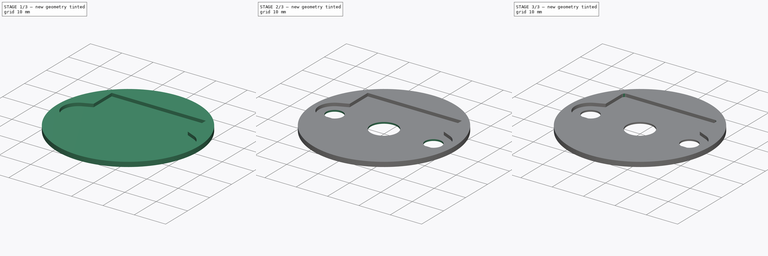
[diagram: build sequence overview — one tinted view per stage of 3, left to right]
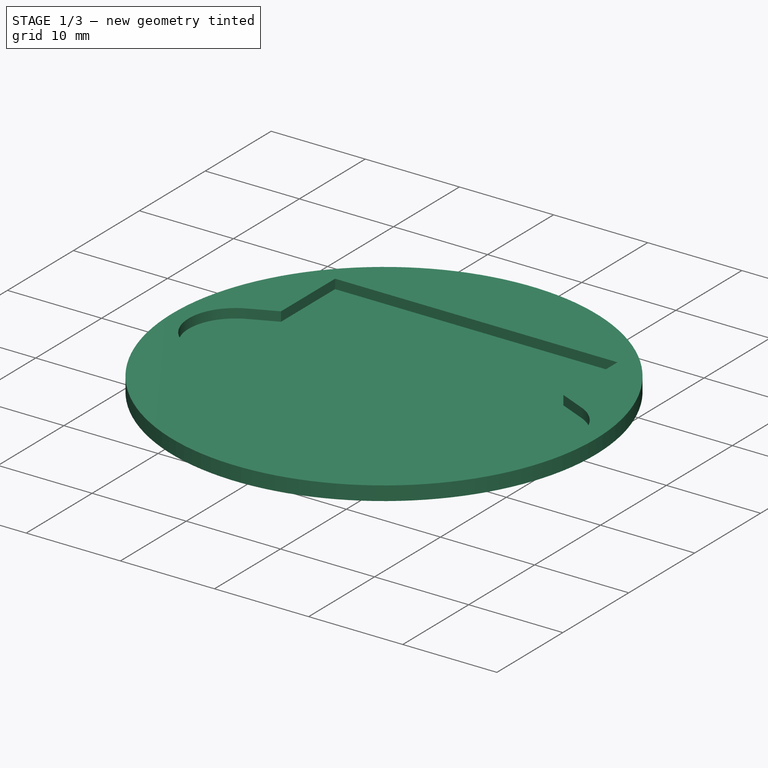
[diagram: stage 1 of 3 — iso view after this stage's code; geometry added in this stage tinted green]
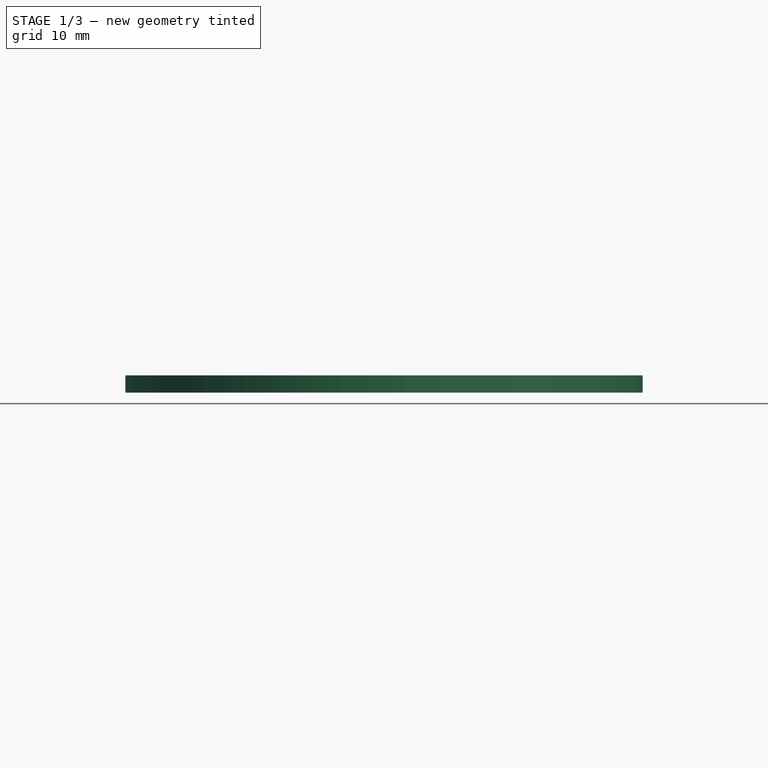
[diagram: stage 1 of 3 — front view after this stage's code; geometry added in this stage tinted green]
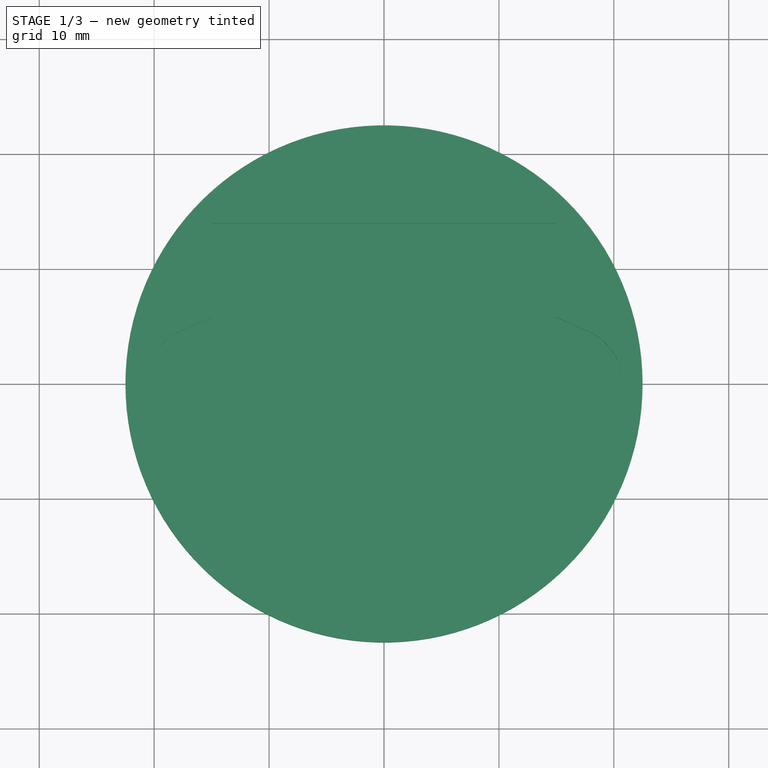
[diagram: stage 1 of 3 — top view after this stage's code; geometry added in this stage tinted green]
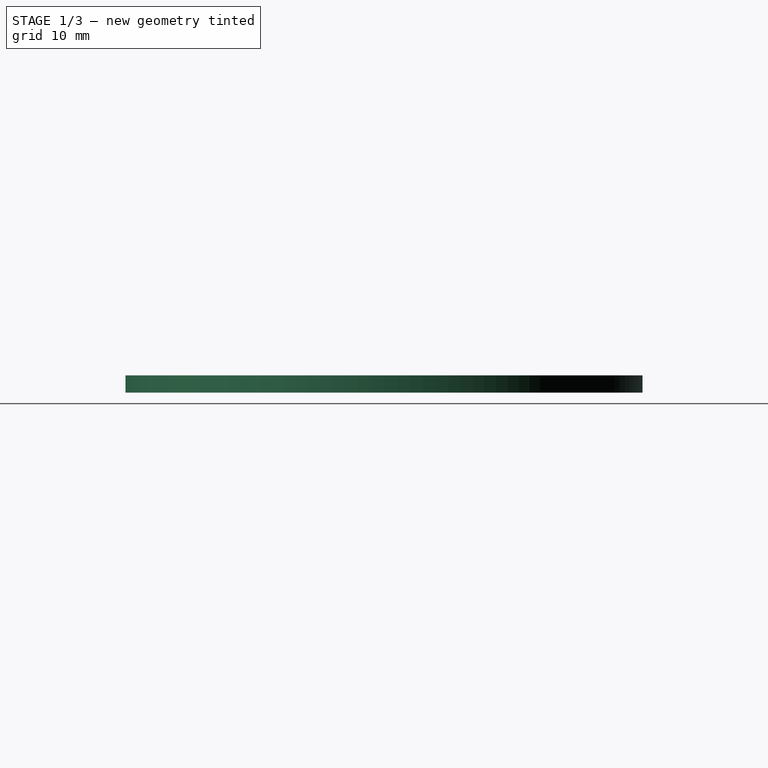
[diagram: stage 1 of 3 — right view after this stage's code; geometry added in this stage tinted green]
FCSTD DOCUMENT  (FreeCAD 0.19R24276 (Git))
Label: Gear_no_screw_V1
License: All rights reserved
LicenseURL: http://en.wikipedia.org/wiki/All_rights_reserved
objects: Sketcher::SketchObject×3, PartDesign::Pad×2, PartDesign::Fillet×2, PartDesign::Pocket×1, PartDesign::Body×1
note: 14 computed .brp shape members not serialized (recipe doc carries the construction recipe); baked Part::Feature solids carry a one-line shape summary decoded from their .brp

FEATURE [Sketcher::SketchObject] Sketch  label="Sketch_d45_kontur"
  FullyConstrained = false
  MapMode = 5
  Support = -> [XY_Plane]
  sketch-geometry (26):
    g0: Circle CenterX=0 CenterY=0 CenterZ=0 NormalX=0 NormalY=0 NormalZ=1 AngleXU=0 Radius=4.25
    g1: Circle CenterX=15.75 CenterY=0 CenterZ=0 NormalX=0 NormalY=0 NormalZ=1 AngleXU=0 Radius=2.65
    g2: Circle CenterX=-15.75 CenterY=0 CenterZ=0 NormalX=0 NormalY=0 NormalZ=1 AngleXU=0 Radius=2.65
    g3: ArcOfCircle CenterX=15.75 CenterY=0 CenterZ=0 NormalX=0 NormalY=0 NormalZ=1 AngleXU=0 Radius=5 StartAngle=5.04775 EndAngle=7.43868
    g4: ArcOfCircle CenterX=-15.75 CenterY=0 CenterZ=0 NormalX=0 NormalY=0 NormalZ=1 AngleXU=0 Radius=5 StartAngle=1.9861 EndAngle=4.37703
    g5: LineSegment StartX=-10 StartY=14 StartZ=0 EndX=10 EndY=14 EndZ=0
    g6: LineSegment StartX=10 StartY=14 StartZ=0 EndX=10 EndY=8 EndZ=0
    g7: LineSegment StartX=-10 StartY=14 StartZ=0 EndX=-10 EndY=8 EndZ=0
    g8: LineSegment StartX=0 StartY=0 StartZ=0 EndX=0 EndY=14 EndZ=0
    g9: LineSegment StartX=-17.7673 StartY=4.57497 StartZ=0 EndX=-10 EndY=8 EndZ=0
    g10: LineSegment StartX=-15.75 StartY=0 StartZ=0 EndX=-17.7673 EndY=4.57497 EndZ=0
    g11: LineSegment StartX=17.7673 StartY=4.57497 StartZ=0 EndX=10 EndY=8 EndZ=0
    g12: LineSegment StartX=17.7673 StartY=4.57497 StartZ=0 EndX=15.75 EndY=0 EndZ=0
    g13: LineSegment StartX=0 StartY=0 StartZ=0 EndX=35.766 EndY=0 EndZ=0
    g14: LineSegment StartX=-2.25 StartY=-10 StartZ=0 EndX=2.25 EndY=-10 EndZ=0
    g15: LineSegment StartX=15.75 StartY=0 StartZ=0 EndX=17.3955 EndY=-4.72147 EndZ=0
    g16: LineSegment StartX=-15.75 StartY=0 StartZ=0 EndX=-17.3955 EndY=-4.72147 EndZ=0
    g17: LineSegment StartX=17.3955 StartY=-4.72147 StartZ=0 EndX=2.25 EndY=-10 EndZ=0
    g18: LineSegment StartX=-17.3955 StartY=-4.72147 StartZ=0 EndX=-2.25 EndY=-10 EndZ=0
    g19: LineSegment StartX=0 StartY=0 StartZ=0 EndX=0 EndY=-10 EndZ=0
    g20: LineSegment StartX=-15 StartY=14 StartZ=0 EndX=-15 EndY=5.79524 EndZ=0
    g21: LineSegment StartX=15 StartY=14 StartZ=0 EndX=15 EndY=5.79524 EndZ=0
    g22: Circle CenterX=0 CenterY=0 CenterZ=0 NormalX=0 NormalY=0 NormalZ=1 AngleXU=0 Radius=22.5
    g23: LineSegment StartX=-15 StartY=14 StartZ=0 EndX=15 EndY=14 EndZ=0
    g24: LineSegment StartX=-17.7673 StartY=4.57497 StartZ=0 EndX=-15 EndY=5.79524 EndZ=0
    g25: LineSegment StartX=15 StartY=5.79524 StartZ=0 EndX=17.7673 EndY=4.57497 EndZ=0
  constraints (64):
    c: Coincident(g0,g-1)
    c: PointOnObject(g1,g-1)
    c: DistanceX(g2,g1) = 31.5
    c: Symmetric(g2,g1,g-1)
    c: Diameter(g0) = 8.5
    c: Diameter(g1) = 5.3
    c: Equal(g1,g2)
    c: Coincident(g3,g1)
    c: Coincident(g4,g2)
    c: Diameter(g3) = 10
    c: Equal(g4,g3)
    c: Horizontal(g5)
    c: DistanceY(g2,g5) = 14
    c: Coincident(g6,g5)
    c: Vertical(g6)
    c: Coincident(g7,g5)
    c: Vertical(g7)
    c: DistanceY(g7,g5) = 6
    c: Equal(g7,g6)
    c: Coincident(g8,g-1)
    c: PointOnObject(g8,g-2)
    c: Symmetric(g5,g5,g8)
    c: DistanceX(g5,g5) = 20
    c: Coincident(g9,g7)
    c: Coincident(g10,g2)
    c: Coincident(g10,g9)
    c: Perpendicular(g10,g9)
    c: Coincident(g11,g6)
    c: Coincident(g12,g11)
    c: Coincident(g12,g1)
    c: Coincident(g13,g-1)
    c: PointOnObject(g13,g-1)
    c: Horizontal(g14)
    c: Coincident(g15,g1)
    c: Coincident(g16,g2)
    c: Coincident(g17,g15)
    c: Coincident(g18,g16)
    c: Perpendicular(g18,g16)
    c: Perpendicular(g17,g15)
    c: Coincident(g18,g14)
    c: Coincident(g14,g17)
    c: DistanceY(g14,g-1) = 10
    c: DistanceX(g14,g14) = 4.5
    c: Coincident(g19,g-1)
    c: PointOnObject(g19,g-2)
    c: Symmetric(g14,g14,g19)
    c: Vertical(g20)
    c: Vertical(g21)
    c: Symmetric(g20,g21,g8)
    c: Horizontal(g20,g8)
    c: DistanceX(g20,g21) = 30
    c: PointOnObject(g20,g9)
    c: PointOnObject(g21,g11)
    c: Coincident(g22,g-1)
    c: Diameter(g22) = 45
    c: Coincident(g3,g15)
    c: Tangent(g3,g11) = -1.5708
    c: Coincident(g4,g9)
    c: Coincident(g4,g16)
    c: Coincident(g23,g20)
    c: Coincident(g24,g4)
    c: Coincident(g24,g20)
    c: Coincident(g25,g21)
    c: Coincident(g25,g3)
FEATURE [PartDesign::Pad] Pad  label="Pad_h1"
  Direction = (1,1,1)
  Length = 1
  Length2 = 100
  Profile = -> Sketch
  Type = 0
FEATURE [Sketcher::SketchObject] Sketch001  label="Sketch001_d45"
  FullyConstrained = true
  MapMode = 5
  Placement = pos=(0,0,0) rot=(1,0,0;3.14159rad)
  Support = -> [Pad]
  sketch-geometry (1):
    g0: Circle CenterX=0 CenterY=0 CenterZ=0 NormalX=0 NormalY=0 NormalZ=1 AngleXU=0 Radius=22.5
  constraints (2):
    c: Coincident(g0,g-1)
    c: Diameter(g0) = 45
FEATURE [PartDesign::Pad] Pad001  label="Pad001_h_0.5"
  BaseFeature = -> Pad
  Direction = (1,1,1)
  Length = 0.5
  Length2 = 100
  Profile = -> Sketch001
  Type = 0
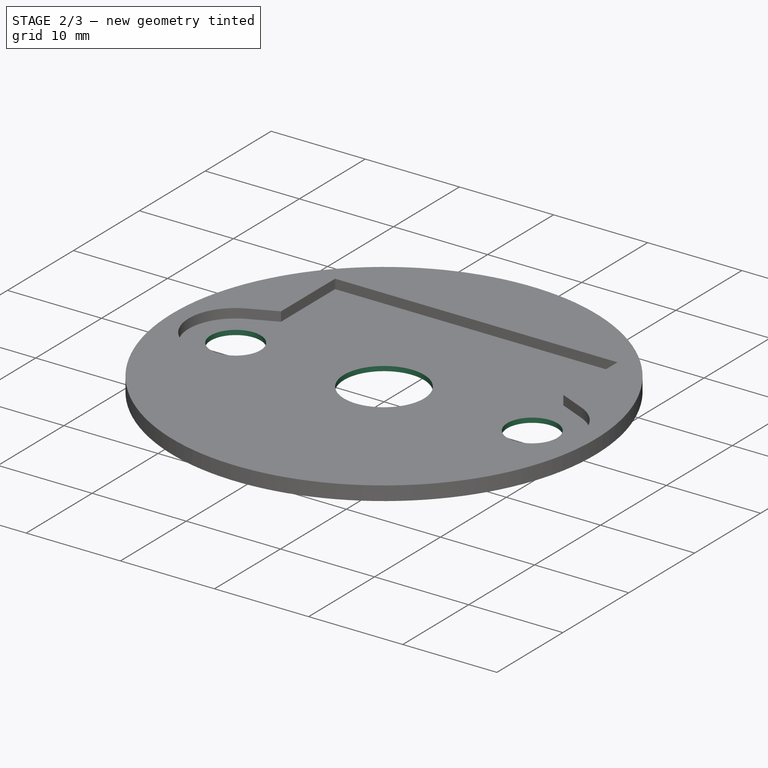
[diagram: stage 2 of 3 — iso view after this stage's code; geometry added in this stage tinted green]
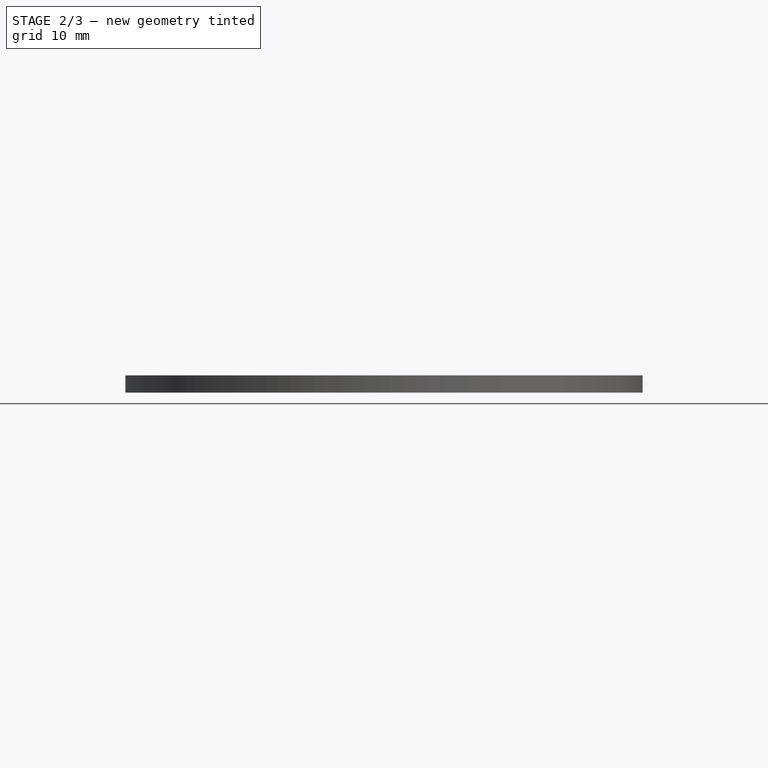
[diagram: stage 2 of 3 — front view after this stage's code; geometry added in this stage tinted green]
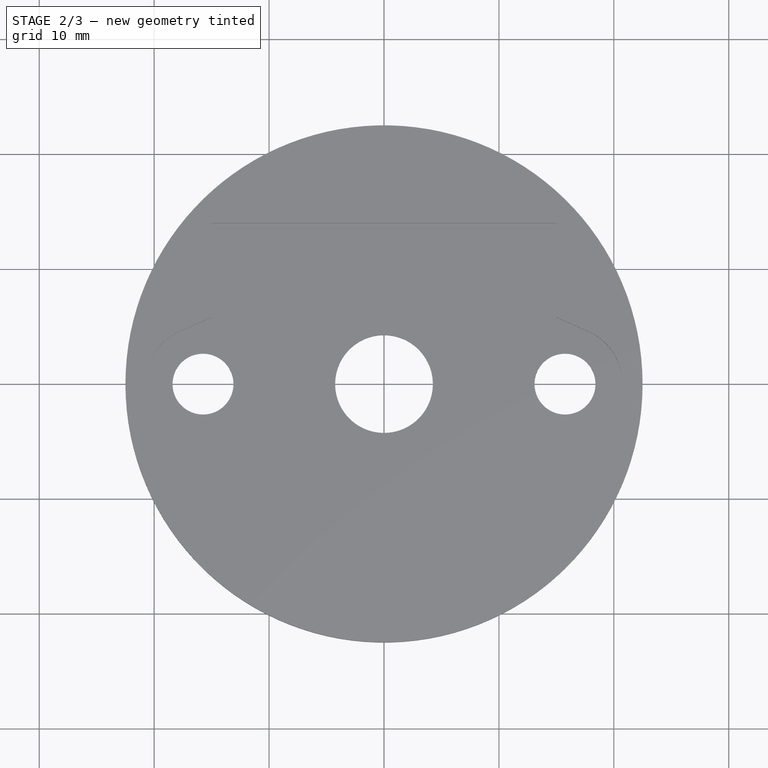
[diagram: stage 2 of 3 — top view after this stage's code; geometry added in this stage tinted green]
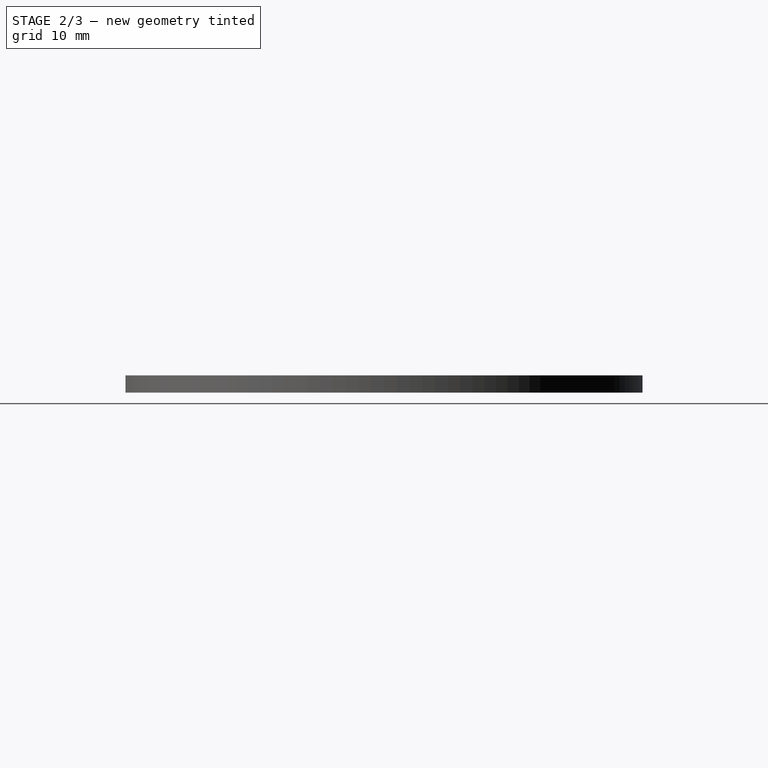
[diagram: stage 2 of 3 — right view after this stage's code; geometry added in this stage tinted green]
FEATURE [Sketcher::SketchObject] Sketch002
  FullyConstrained = true
  MapMode = 5
  Placement = pos=(0,0,-0.5) rot=(1,0,0;3.14159rad)
  Support = -> [Pad001]
  sketch-geometry (3):
    g0: Circle CenterX=0 CenterY=0 CenterZ=0 NormalX=0 NormalY=0 NormalZ=1 AngleXU=0 Radius=4.25
    g1: Circle CenterX=-15.75 CenterY=0 CenterZ=0 NormalX=0 NormalY=0 NormalZ=1 AngleXU=0 Radius=2.65
    g2: Circle CenterX=15.75 CenterY=0 CenterZ=0 NormalX=0 NormalY=0 NormalZ=1 AngleXU=0 Radius=2.65
  constraints (7):
    c: Coincident(g0,g-1)
    c: PointOnObject(g2,g-1)
    c: Diameter(g0) = 8.5
    c: Equal(g1,g2)
    c: Diameter(g1) = 5.3
    c: Symmetric(g1,g2,g0)
    c: DistanceX(g1,g2) = 31.5
FEATURE [PartDesign::Pocket] Pocket
  BaseFeature = -> Pad001
  Length = 5
  Length2 = 100
  Profile = -> Sketch002
  Type = 1
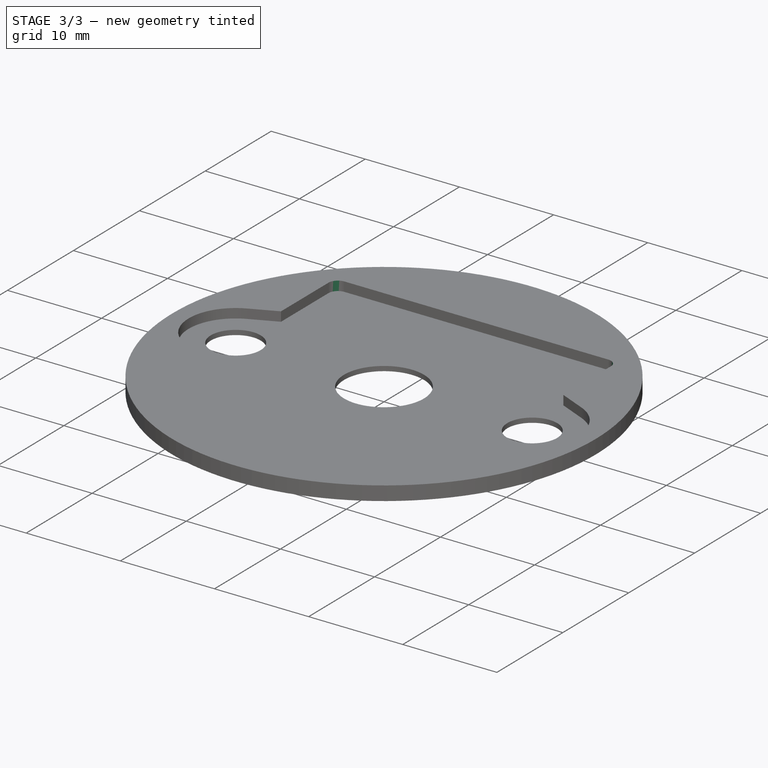
[diagram: stage 3 of 3 — iso view after this stage's code; geometry added in this stage tinted green]
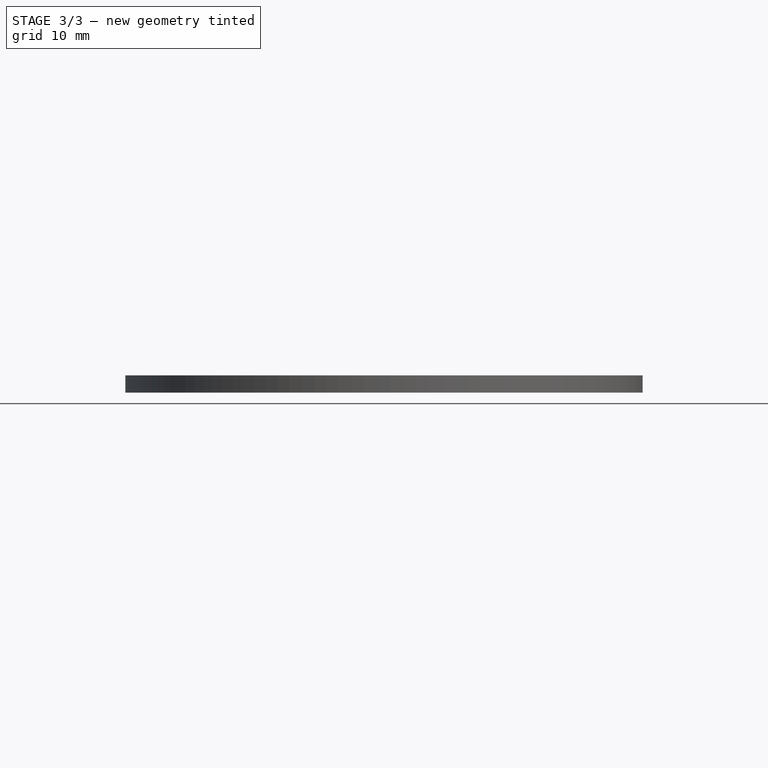
[diagram: stage 3 of 3 — front view after this stage's code; geometry added in this stage tinted green]
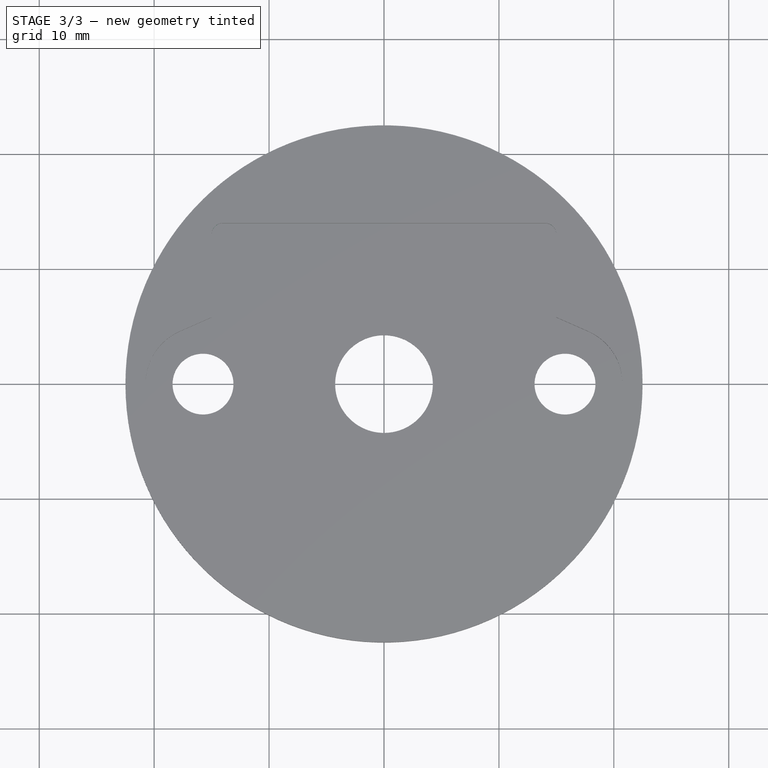
[diagram: stage 3 of 3 — top view after this stage's code; geometry added in this stage tinted green]
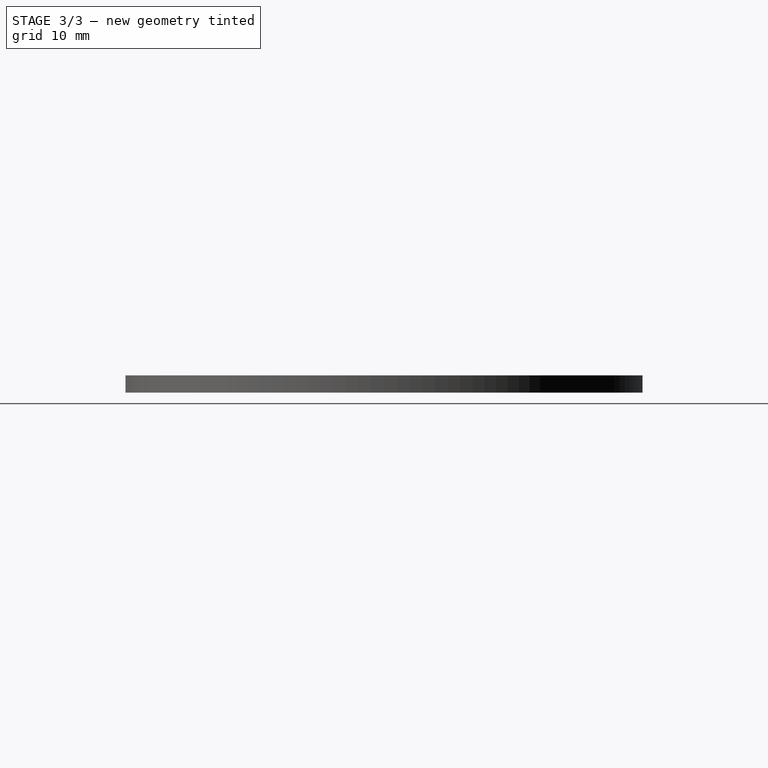
[diagram: stage 3 of 3 — right view after this stage's code; geometry added in this stage tinted green]
FEATURE [PartDesign::Fillet] Fillet
  Base = -> Pocket [Edge24,Edge22]
  BaseFeature = -> Pocket
  Radius = 1
  SupportTransform = false
FEATURE [PartDesign::Fillet] Fillet001
  Base = -> Fillet [Edge27,Edge31]
  BaseFeature = -> Fillet
  Radius = 1
  SupportTransform = false
FEATURE [PartDesign::Body] Body
  Group = -> [Sketch,Pad,Sketch001,Pad001,Sketch002,Pocket,Fillet,Fillet001]
  Origin = -> Origin
  Tip = -> Fillet001
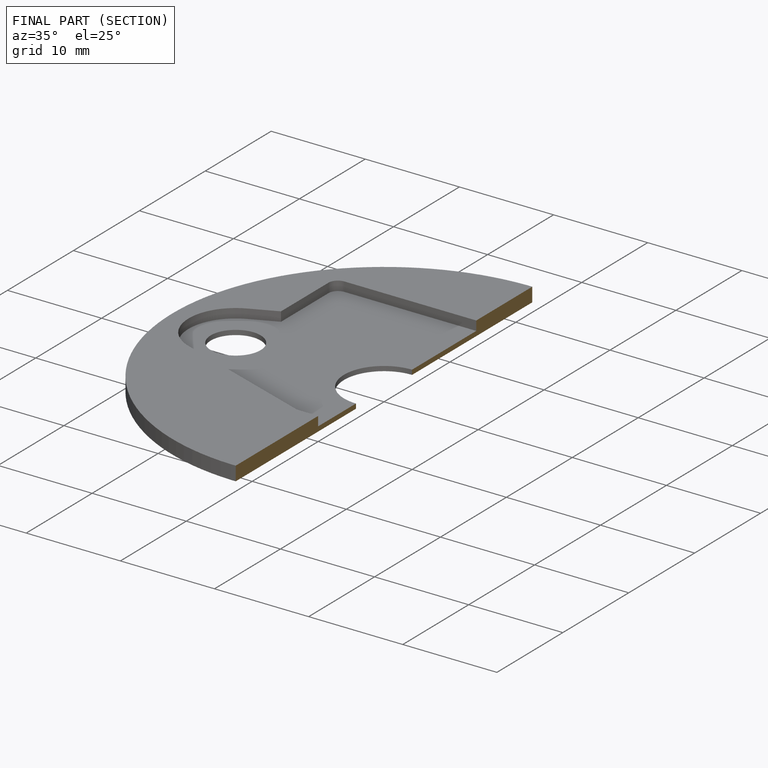
[diagram: finished part — half-section view (interior)]
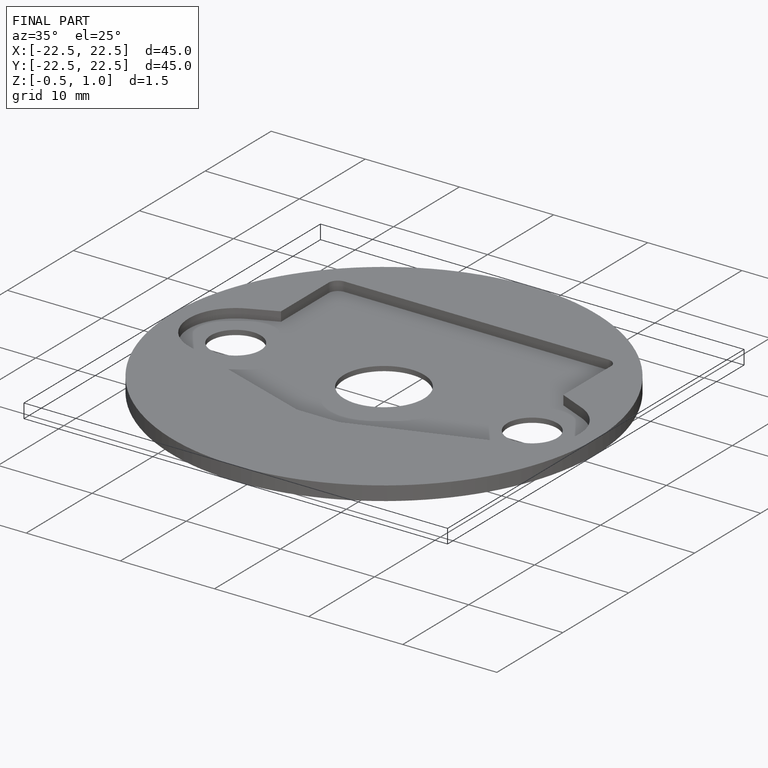
[diagram: finished part — iso view with bounding-box wireframe]
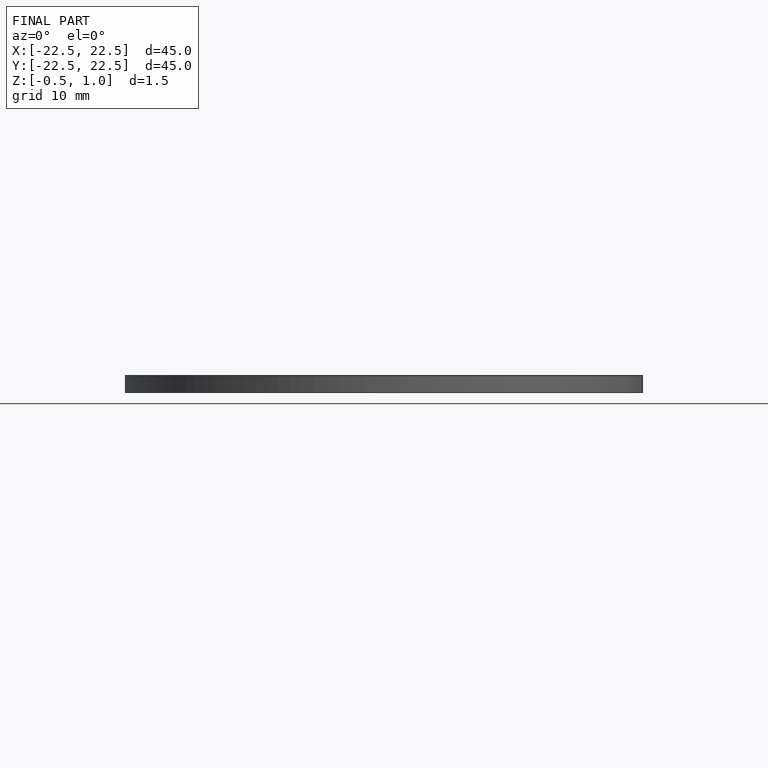
[diagram: finished part — front view with bounding-box wireframe]
